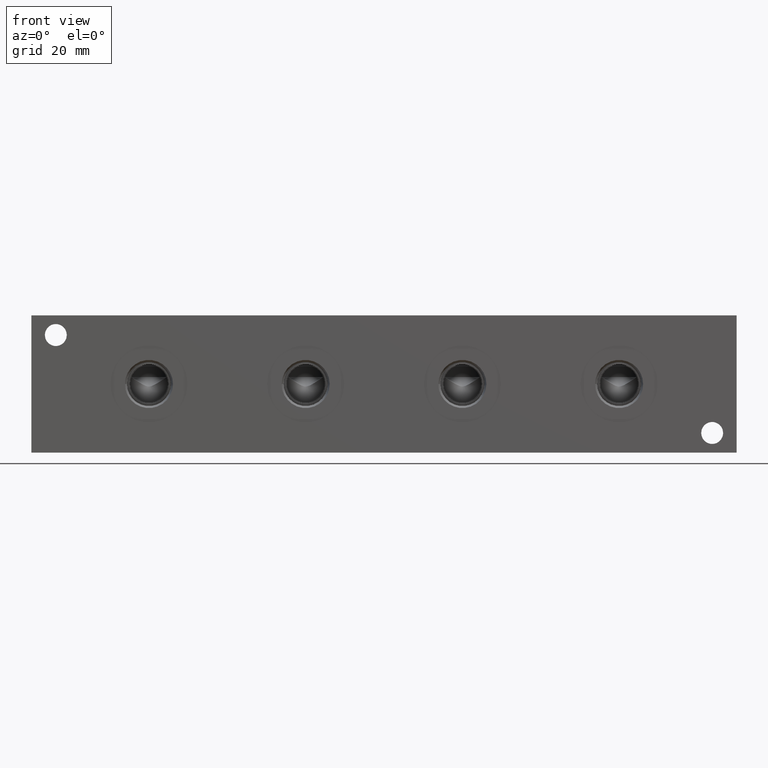
[diagram: clean part render]
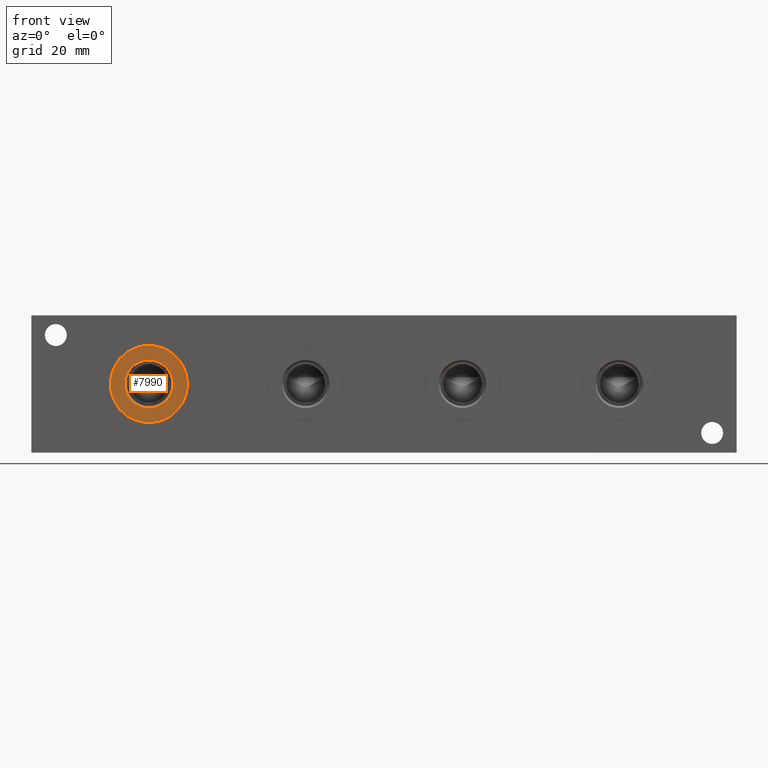
[diagram: same view with one face highlighted and labeled with its STEP entity id]
A machine part, front view. The second image highlights one B-rep face of the part: STEP entity #7990.
In plain terms, the highlighted planar face has unit normal (0, 1, 0).
Its self-contained STEP definition (entity closure, byte-faithful):
#247=CIRCLE('',#8458,12.5095);
#248=CIRCLE('',#8459,12.5095);
#249=CIRCLE('',#8461,7.7978);
#250=CIRCLE('',#8462,7.7978);
#317=FACE_BOUND('',#1555,.T.);
#1090=FACE_OUTER_BOUND('',#1554,.T.);
#1554=EDGE_LOOP('',(#6955,#6956));
#1555=EDGE_LOOP('',(#6957,#6958));
#3691=VERTEX_POINT('',#13951);
#3692=VERTEX_POINT('',#13953);
#3693=VERTEX_POINT('',#13957);
#3694=VERTEX_POINT('',#13958);
#4793=EDGE_CURVE('',#3691,#3692,#247,.T.);
#4794=EDGE_CURVE('',#3692,#3691,#248,.T.);
#4795=EDGE_CURVE('',#3693,#3694,#249,.T.);
#4796=EDGE_CURVE('',#3694,#3693,#250,.T.);
#6955=ORIENTED_EDGE('',*,*,#4794,.F.);
#6956=ORIENTED_EDGE('',*,*,#4793,.F.);
#6957=ORIENTED_EDGE('',*,*,#4795,.T.);
#6958=ORIENTED_EDGE('',*,*,#4796,.T.);
#7280=PLANE('',#8460);
#7990=ADVANCED_FACE('',(#1090,#317),#7280,.F.);
#8458=AXIS2_PLACEMENT_3D('',#13954,#10044,#10045);
#8459=AXIS2_PLACEMENT_3D('',#13955,#10046,#10047);
#8460=AXIS2_PLACEMENT_3D('',#13956,#10048,#10049);
#8461=AXIS2_PLACEMENT_3D('',#13959,#10050,#10051);
#8462=AXIS2_PLACEMENT_3D('',#13960,#10052,#10053);
#10044=DIRECTION('center_axis',(0.,1.,0.));
#10045=DIRECTION('ref_axis',(1.,0.,0.));
#10046=DIRECTION('center_axis',(0.,1.,0.));
#10047=DIRECTION('ref_axis',(1.,0.,0.));
#10048=DIRECTION('center_axis',(0.,1.,0.));
#10049=DIRECTION('ref_axis',(0.,0.,1.));
#10050=DIRECTION('center_axis',(0.,1.,0.));
#10051=DIRECTION('ref_axis',(1.,0.,0.));
#10052=DIRECTION('center_axis',(0.,1.,0.));
#10053=DIRECTION('ref_axis',(1.,0.,0.));
#13951=CARTESIAN_POINT('',(25.5905,0.7874,22.225));
#13953=CARTESIAN_POINT('',(50.6095,0.7874,22.225));
#13954=CARTESIAN_POINT('Origin',(38.1,0.7874,22.225));
#13955=CARTESIAN_POINT('Origin',(38.1,0.7874,22.225));
#13956=CARTESIAN_POINT('Origin',(45.8978,0.7874,22.225));
#13957=CARTESIAN_POINT('',(45.8978,0.7874,22.225));
#13958=CARTESIAN_POINT('',(30.3022,0.787399999999999,22.225));
#13959=CARTESIAN_POINT('Origin',(38.1,0.7874,22.225));
#13960=CARTESIAN_POINT('Origin',(38.1,0.7874,22.225));